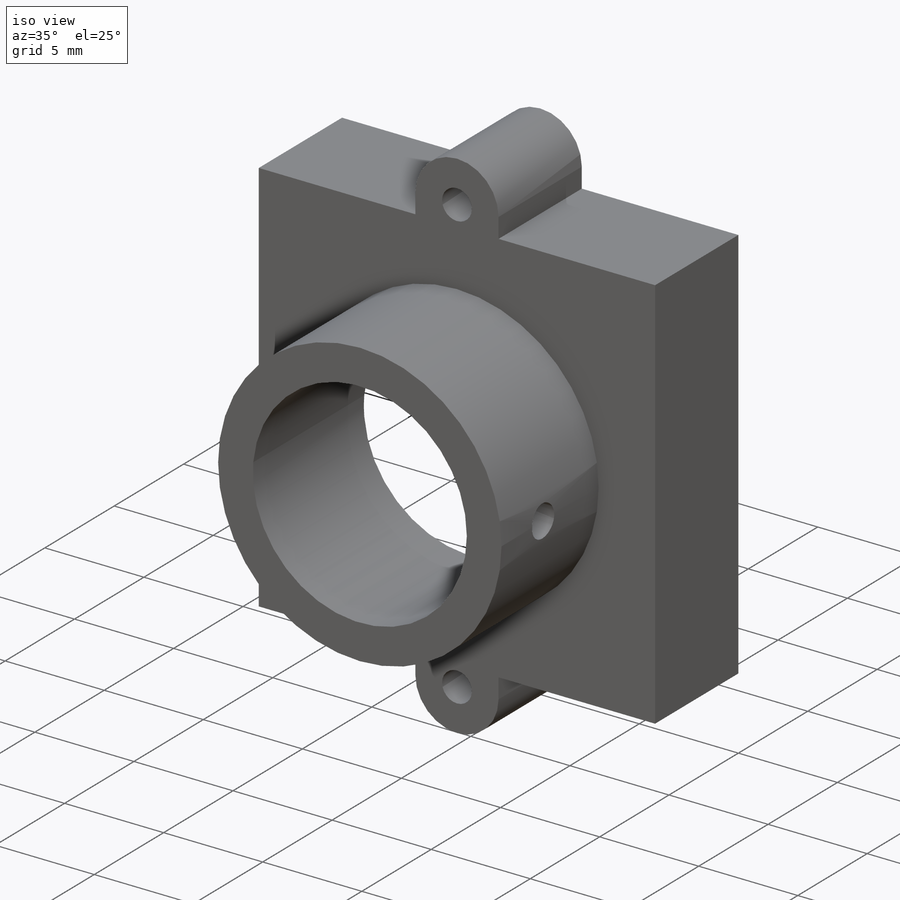
[diagram: iso view]
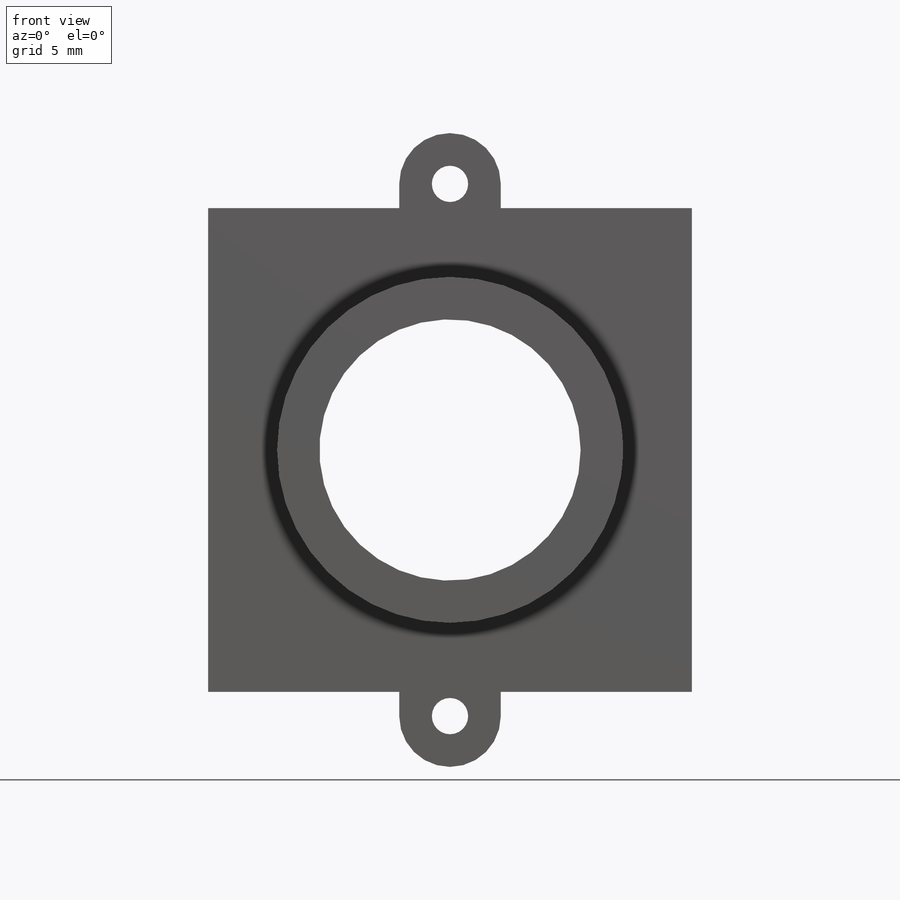
[diagram: front view]
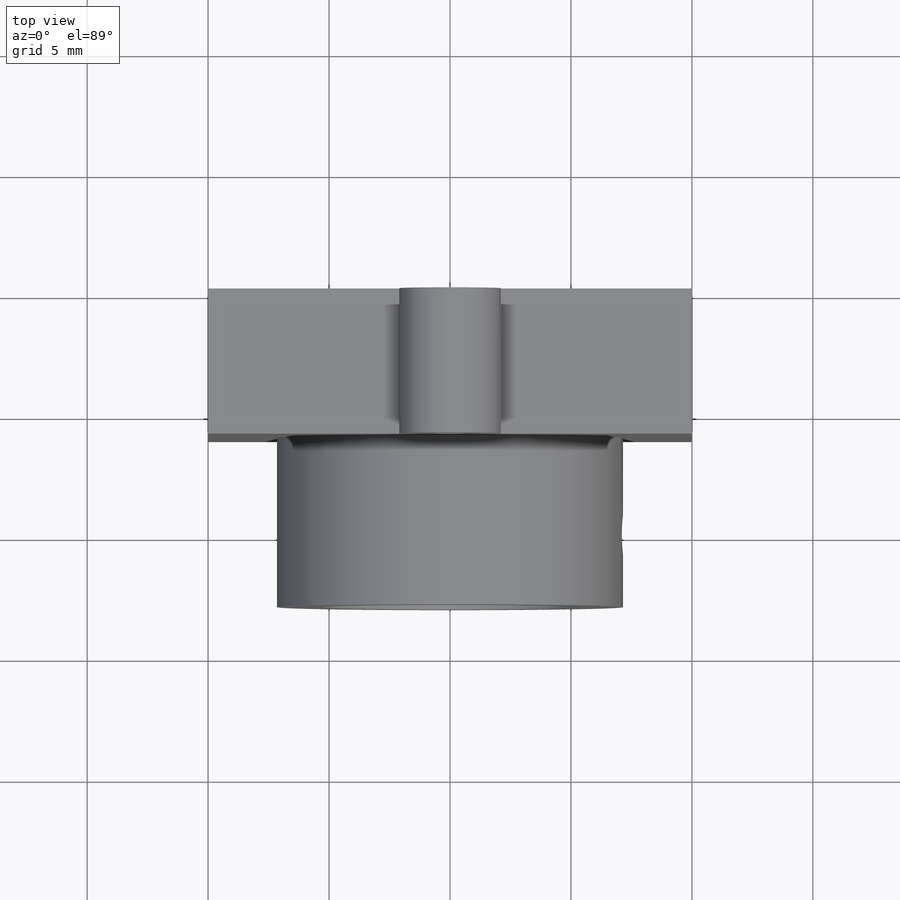
[diagram: top view]
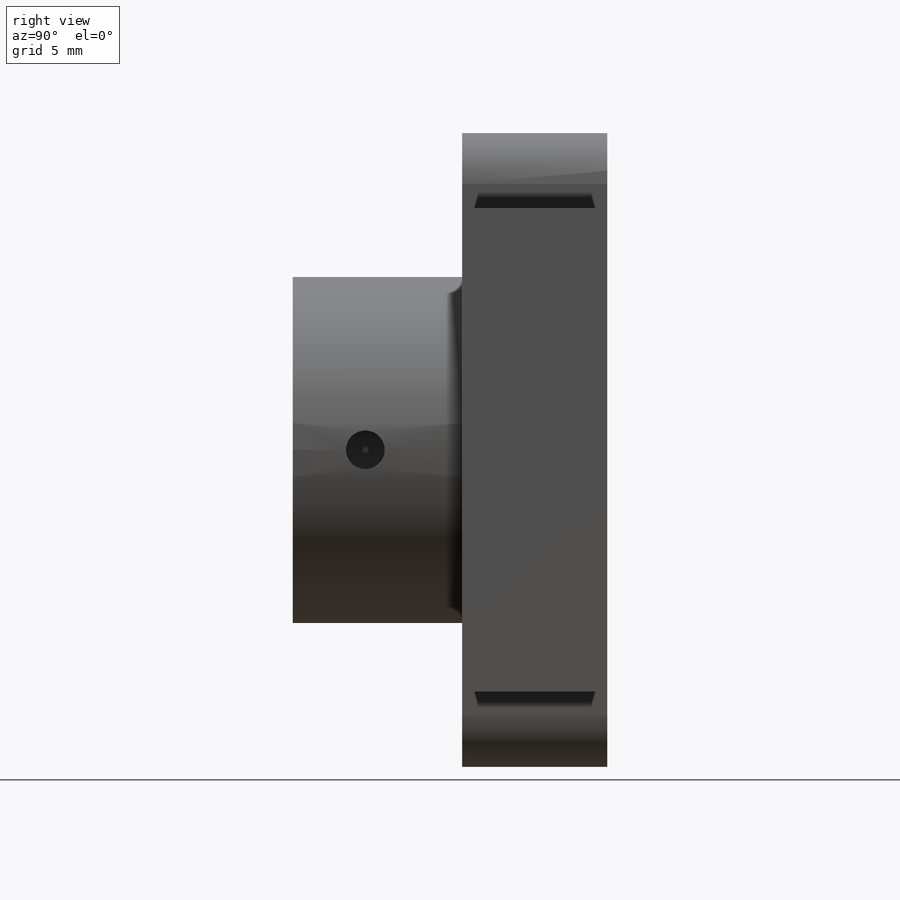
[diagram: right view]
SOLIDWORKS PART (.sldprt)
format: sldprt  version: not decoded by parser v0  size: 340,992 bytes
history: native  units: mm
features: sketch x12, plane x4, extrude x4, hole x3, cut_extrude x2, chamfer x2, material x1 (+9 scaffold rows collapsed)
feature tree (37):
  scaffold x9  (default folders/planes/origin — collapsed)
  material  "Material <nicht festgelegt>"
  plane  "Ebene vorne"
  plane  "Ebene oben"
  plane  "Ebene rechts"
  plane  "Ebene1"
  sketch  "Skizze1"
  extrude  "Aufsatz-Linear austragen1"  Depth=6mm
  sketch  "Skizze2"
  extrude  "Aufsatz-Linear austragen2"  Depth=7.9mm
  sketch  "Skizze3"
  extrude  "Aufsatz-Linear austragen3"  Depth=7.9mm
  sketch  "Skizze4"
  extrude  "Aufsatz-Linear austragen4"  Depth=7mm
  sketch  "Skizze5"
  cut_extrude  "Schnitt-Linear austragen1"  Depth=1.3mm
  sketch  "Skizze6"
  cut_extrude  "Schnitt-Linear austragen2"  Depth=3.7mm
  hole  "Ø1.5 (1.5) Durchmesser Bohrung1"  Diameter=1.5mm Depth=13mm
  sketch  "Skizze8"
  sketch  "Skizze7"  dims[hole-wizard template sketch: 59 standard entries collapsed; hole parameters kept: c18.Bohrerdurchmesser=1.5mm c18.Bohrungstiefe=13.0mm]
  hole  "Ø10.8 (10.8) Durchmesser Bohrung1"  Diameter=10.8mm Depth=13mm
  sketch  "Skizze10"
  sketch  "Skizze9"  dims[hole-wizard template sketch: 59 standard entries collapsed; hole parameters kept: c18.Bohrerdurchmesser=10.8mm c18.Bohrungstiefe=13.0mm]
  hole  "Ø1.6 (1.6) Durchmesser Bohrung1"  Diameter=1.6mm Depth=1.75mm
  sketch  "3D-Skizze1"
  sketch  "Skizze11"  dims[hole-wizard template sketch: 60 standard entries collapsed; hole parameters kept: c18.Bohrungstiefe=1.75mm]
  chamfer  "Fase1"  Distance=2mm Angle=45deg
  chamfer  "Fase2"  Distance=2.292893mm Angle=45deg
decode coverage: 14 of 23 modeling features carry decoded parameters
note: ~ marks probable driven/reference dimensions
note: suppression state not decoded; provenance and decode notes live in map.json
